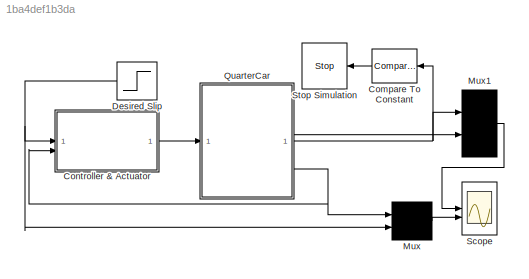
MODEL slx_1ba4def1b3da
KIND model
CONFIG AbsTol = auto
CONFIG EnableMultiTasking = on
CONFIG FixedStep = 0.001
CONFIG MaxStep = Ts
CONFIG MinStep = auto
CONFIG PreLoadFcn = QuarterCarParams
CONFIG RelTol = 1e-3
CONFIG SampleTimeConstraint = Unconstrained
CONFIG SolverName = ode45
CONFIG StartTime = 0.0
CONFIG StopTime = 5
BLOCK [Reference] Compare To Constant  REF=simulink/Logic and Bit
Operations/Compare
To Constant
  NameLocation = top
  SourceBlock = simulink/Logic and Bit\nOperations/Compare\nTo Constant
  SourceType = Compare To Constant
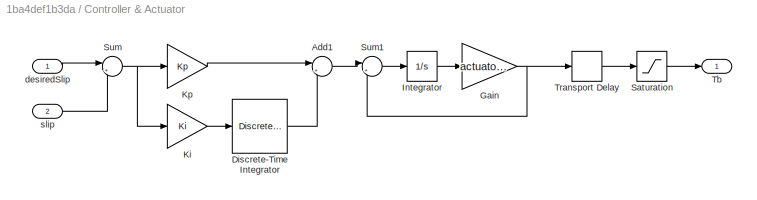
BLOCK [SubSystem] Controller & Actuator
  MinAlgLoopOccurrences = on
  TreatAsAtomicUnit = on
BLOCK [Sum] Controller & Actuator/Add1
  Inputs = |++
BLOCK [DiscreteIntegrator] Controller & Actuator/Discrete-Time Integrator
  ICPrevOutput = DiscIntNeverNeededParam
  ICPrevScaledInput = DiscIntNeverNeededParam
  SampleTime = -1
BLOCK [Gain] Controller & Actuator/Gain
  Gain = actuatorPole
BLOCK [Integrator] Controller & Actuator/Integrator
BLOCK [Gain] Controller & Actuator/Ki
  Gain = Ki
BLOCK [Gain] Controller & Actuator/Kp
  Gain = Kp
BLOCK [Saturate] Controller & Actuator/Saturation
  LowerLimit = 0
  UpperLimit = actuatorSat
BLOCK [Sum] Controller & Actuator/Sum
  Inputs = |+-
BLOCK [Sum] Controller & Actuator/Sum1
  Inputs = |+-
BLOCK [Outport] Controller & Actuator/Tb
BLOCK [TransportDelay] Controller & Actuator/Transport Delay
  BufferSize = 10240
  DelayTime = actuatorDelay
BLOCK [Inport] Controller & Actuator/desiredSlip
BLOCK [Inport] Controller & Actuator/slip
  Port = 2
BLOCK [Step] Desired Slip
  After = lambda_ref
  NameLocation = top
  SampleTime = 0
  Time = 0.2
BLOCK [Mux] Mux
  Inputs = 2
BLOCK [Mux] Mux1
  Inputs = 2
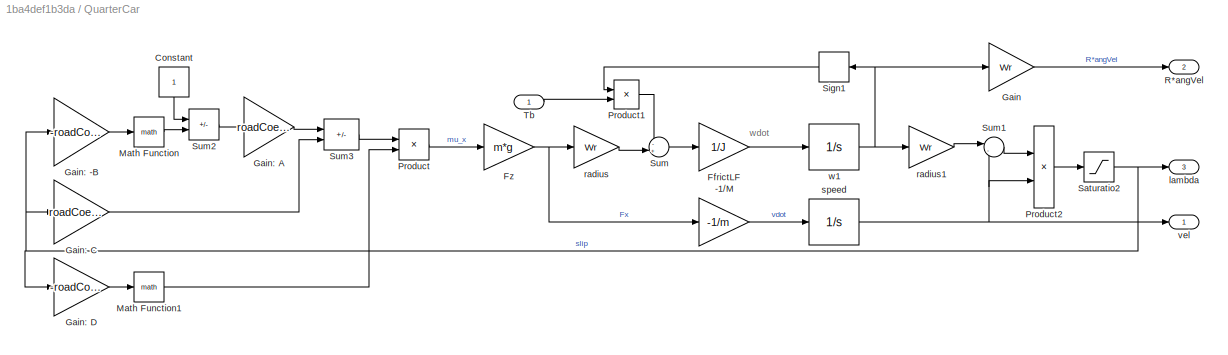
BLOCK [SubSystem] QuarterCar
  MinAlgLoopOccurrences = on
  NameLocation = top
  TreatAsAtomicUnit = on
BLOCK [Gain] QuarterCar/-1//M
  Gain = -1/m
  OutDataTypeStr = Inherit: Same as input
  ParamDataTypeStr = Inherit: Same as input
  SaturateOnIntegerOverflow = on
BLOCK [Constant] QuarterCar/Constant
  NameLocation = right
BLOCK [Gain] QuarterCar/FfrictLF
  Gain = 1/J
  OutDataTypeStr = Inherit: Same as input
  ParamDataTypeStr = Inherit: Same as input
  SaturateOnIntegerOverflow = on
BLOCK [Gain] QuarterCar/Fz
  Gain = m*g
  OutDataTypeStr = Inherit: Same as input
  ParamDataTypeStr = Inherit: Same as input
  SaturateOnIntegerOverflow = on
BLOCK [Gain] QuarterCar/Gain
  Gain = Wr
BLOCK [Gain] QuarterCar/Gain: -B
  Gain = -roadCoeffs(2)
  OutDataTypeStr = Inherit: Same as input
  ParamDataTypeStr = Inherit: Same as input
  SaturateOnIntegerOverflow = on
BLOCK [Gain] QuarterCar/Gain: A
  Gain = roadCoeffs(1)
  OutDataTypeStr = Inherit: Same as input
  ParamDataTypeStr = Inherit: Same as input
  SaturateOnIntegerOverflow = on
BLOCK [Gain] QuarterCar/Gain: C
  Gain = roadCoeffs(3)
  OutDataTypeStr = Inherit: Same as input
  ParamDataTypeStr = Inherit: Same as input
  SaturateOnIntegerOverflow = on
BLOCK [Gain] QuarterCar/Gain: D
  Gain = -roadCoeffs(4)*v0
  OutDataTypeStr = Inherit: Same as input
  ParamDataTypeStr = Inherit: Same as input
  SaturateOnIntegerOverflow = on
BLOCK [Math] QuarterCar/Math Function
  SignedPower = on
BLOCK [Math] QuarterCar/Math Function1
  SignedPower = on
BLOCK [Product] QuarterCar/Product
BLOCK [Product] QuarterCar/Product1
  OutDataTypeStr = Inherit: Same as first input
  SaturateOnIntegerOverflow = on
BLOCK [Product] QuarterCar/Product2
  Inputs = */
  OutDataTypeStr = Inherit: Same as first input
  SaturateOnIntegerOverflow = on
BLOCK [Outport] QuarterCar/R*angVel
  Port = 2
BLOCK [Saturate] QuarterCar/Saturatio2
  LowerLimit = 0
  UpperLimit = 1
BLOCK [Signum] QuarterCar/Sign1
BLOCK [Sum] QuarterCar/Sum
  Inputs = -+|
BLOCK [Sum] QuarterCar/Sum1
  Inputs = |-+
BLOCK [Sum] QuarterCar/Sum2
  IconShape = rectangular
  Inputs = +-
BLOCK [Sum] QuarterCar/Sum3
  IconShape = rectangular
  Inputs = +-
BLOCK [Inport] QuarterCar/Tb
BLOCK [Outport] QuarterCar/lambda
  Port = 3
BLOCK [Gain] QuarterCar/radius
  Gain = Wr
  OutDataTypeStr = Inherit: Same as input
  ParamDataTypeStr = Inherit: Same as input
  SaturateOnIntegerOverflow = on
BLOCK [Gain] QuarterCar/radius1
  Gain = Wr
  OutDataTypeStr = Inherit: Same as input
  ParamDataTypeStr = Inherit: Same as input
  SaturateOnIntegerOverflow = on
BLOCK [Integrator] QuarterCar/speed
  InitialCondition = v0
  LimitOutput = on
  LowerSaturationLimit = 0
BLOCK [Outport] QuarterCar/vel
BLOCK [Integrator] QuarterCar/w1
  InitialCondition = v0/Wr
  LimitOutput = on
  LowerSaturationLimit = 0
  NameLocation = top
BLOCK [Scope] Scope
  Floating = off
  NumInputPorts = 2
  ScopeSpecificationString = Simulink.scopes.TimeScopeBlockCfg('CurrentConfiguration', extmgr.ConfigurationSet(extmgr.Configuration('Core','General UI',true),extmgr.Configuration('Core','Source UI',true),extmgr.Configuration('Sources','WiredSimulink',true,'DataLoggingVariableName','ScopeData1','DataLoggingSaveFormat','StructureWithTime','DataLoggingDecimation','1','DataLoggingDecimateData',true),extmgr.Configuration('Visuals'...<+2451ch>
BLOCK [Stop] Stop Simulation
  NameLocation = top
ANNOTATION QuarterCar: wdot
LINE Compare To Constant:1 -> Stop Simulation:1
LINE Controller & Actuator/Add1:1 -> Controller & Actuator/Sum1:1
LINE Controller & Actuator/Discrete-Time Integrator:1 -> Controller & Actuator/Add1:2
NET Controller & Actuator/Gain:1 -> Controller & Actuator/Sum1:2, Controller & Actuator/Transport Delay:1
LINE Controller & Actuator/Integrator:1 -> Controller & Actuator/Gain:1
LINE Controller & Actuator/Ki:1 -> Controller & Actuator/Discrete-Time Integrator:1
LINE Controller & Actuator/Kp:1 -> Controller & Actuator/Add1:1
LINE Controller & Actuator/Saturation:1 -> Controller & Actuator/Tb:1
LINE Controller & Actuator/Sum1:1 -> Controller & Actuator/Integrator:1
NET Controller & Actuator/Sum:1 -> Controller & Actuator/Ki:1, Controller & Actuator/Kp:1
LINE Controller & Actuator/Transport Delay:1 -> Controller & Actuator/Saturation:1
LINE Controller & Actuator/desiredSlip:1 -> Controller & Actuator/Sum:1
LINE Controller & Actuator/slip:1 -> Controller & Actuator/Sum:2
LINE Controller & Actuator:1 -> QuarterCar:1
NET Desired Slip:1 -> Controller & Actuator:1, Mux:2
LINE Mux1:1 -> Scope:1
LINE Mux:1 -> Scope:2
LINE QuarterCar/-1//M:1 -> QuarterCar/speed:1
LINE QuarterCar/Constant:1 -> QuarterCar/Sum2:1
LINE QuarterCar/FfrictLF:1 -> QuarterCar/w1:1
NET QuarterCar/Fz:1 -> QuarterCar/-1//M:1, QuarterCar/radius:1
LINE QuarterCar/Gain: -B:1 -> QuarterCar/Math Function:1
LINE QuarterCar/Gain: A:1 -> QuarterCar/Sum3:1
LINE QuarterCar/Gain: C:1 -> QuarterCar/Sum3:2
LINE QuarterCar/Gain: D:1 -> QuarterCar/Math Function1:1
LINE QuarterCar/Gain:1 -> QuarterCar/R*angVel:1
LINE QuarterCar/Math Function1:1 -> QuarterCar/Product:2
LINE QuarterCar/Math Function:1 -> QuarterCar/Sum2:2
LINE QuarterCar/Product1:1 -> QuarterCar/Sum:1
LINE QuarterCar/Product2:1 -> QuarterCar/Saturatio2:1
LINE QuarterCar/Product:1 -> QuarterCar/Fz:1
NET QuarterCar/Saturatio2:1 -> QuarterCar/Gain: -B:1, QuarterCar/Gain: C:1, QuarterCar/Gain: D:1, QuarterCar/lambda:1
LINE QuarterCar/Sign1:1 -> QuarterCar/Product1:1
LINE QuarterCar/Sum1:1 -> QuarterCar/Product2:1
LINE QuarterCar/Sum2:1 -> QuarterCar/Gain: A:1
LINE QuarterCar/Sum3:1 -> QuarterCar/Product:1
LINE QuarterCar/Sum:1 -> QuarterCar/FfrictLF:1
LINE QuarterCar/Tb:1 -> QuarterCar/Product1:2
LINE QuarterCar/radius1:1 -> QuarterCar/Sum1:1
LINE QuarterCar/radius:1 -> QuarterCar/Sum:2
NET QuarterCar/speed:1 -> QuarterCar/Product2:2, QuarterCar/Sum1:2, QuarterCar/vel:1
NET QuarterCar/w1:1 -> QuarterCar/Gain:1, QuarterCar/Sign1:1, QuarterCar/radius1:1
NET QuarterCar:1 -> Compare To Constant:1, Mux1:1
LINE QuarterCar:2 -> Mux1:2
NET QuarterCar:3 -> Controller & Actuator:2, Mux:1
note: NET lines group one-source signal fan-out (src -> all destinations, sorted); 1:1 wires keep LINE
